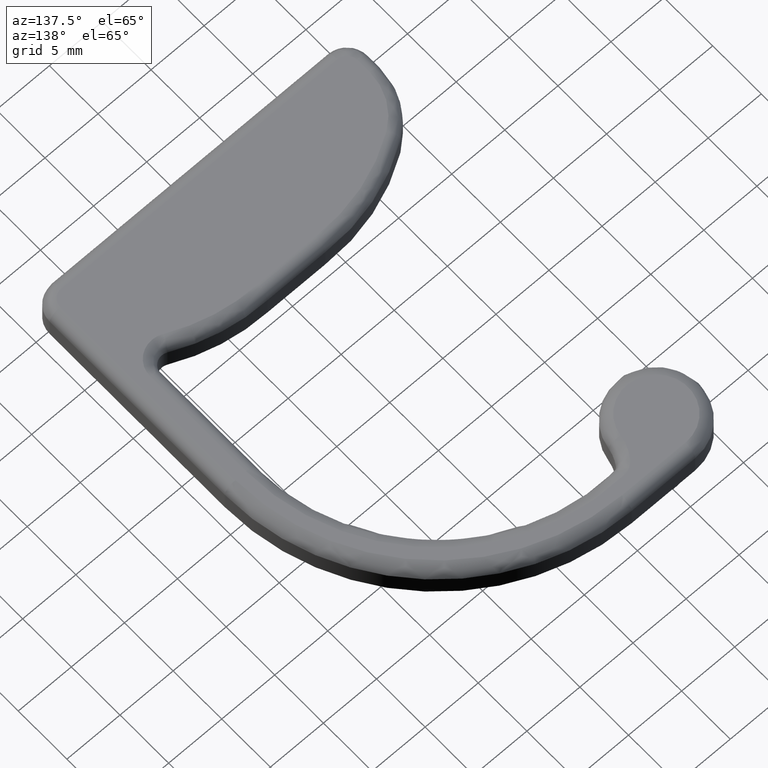
[diagram: clean part render]
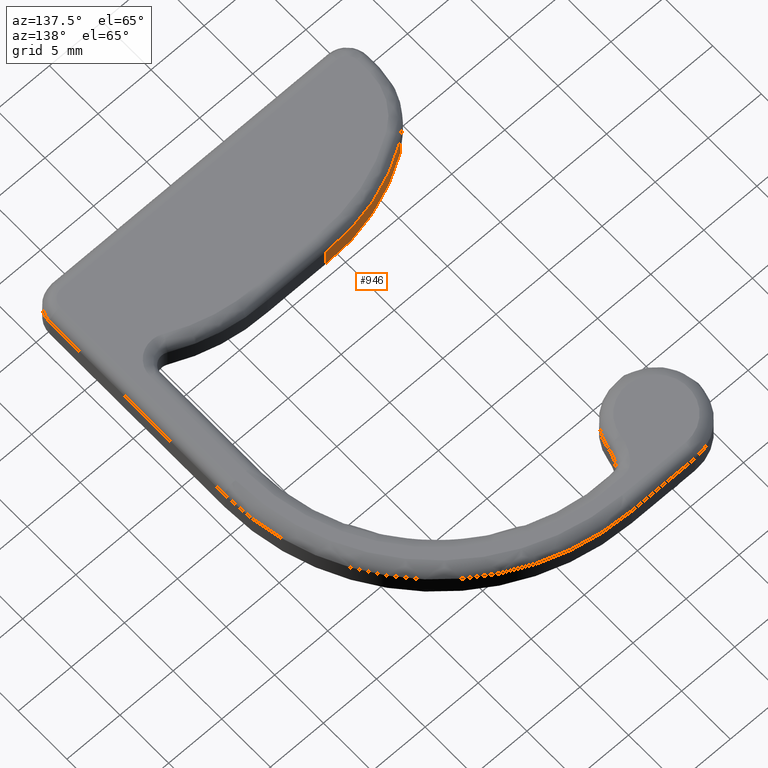
[diagram: same view with one face highlighted and labeled with its STEP entity id]
A machine part, auxiliary view. The second image highlights one B-rep face of the part: STEP entity #946.
In plain terms, the highlighted cylindrical surface (partial cylindrical patch) has radius 16.4097 mm, axis along (0, 0, 1).
Its self-contained STEP definition (entity closure, byte-faithful):
#26=CARTESIAN_POINT('',(-1.348833711088588,3.710987867076256,0.0));
#27=VERTEX_POINT('',#26);
#35=CARTESIAN_POINT('',(8.283639813359571,6.497942703677609,0.0));
#36=VERTEX_POINT('',#35);
#37=CARTESIAN_POINT('',(7.810052252098785,-9.904910864145336,0.0));
#38=DIRECTION('',(0.0,0.0,1.0));
#39=DIRECTION('',(1.0,0.0,0.0));
#40=AXIS2_PLACEMENT_3D('',#37,#38,#39);
#41=CIRCLE('',#40,16.409688916783985);
#42=EDGE_CURVE('',#36,#27,#41,.T.);
#314=CARTESIAN_POINT('',(8.283639813359571,6.497942703677609,2.0));
#315=VERTEX_POINT('',#314);
#394=CARTESIAN_POINT('',(-1.348833711089782,3.710987867078075,2.0));
#395=VERTEX_POINT('',#394);
#396=CARTESIAN_POINT('',(7.810052252098785,-9.904910864145336,2.0));
#397=DIRECTION('',(0.0,0.0,1.0));
#398=DIRECTION('',(1.0,0.0,0.0));
#399=AXIS2_PLACEMENT_3D('',#396,#397,#398);
#400=CIRCLE('',#399,16.409688916783985);
#401=EDGE_CURVE('',#315,#395,#400,.T.);
#559=CARTESIAN_POINT('',(8.283639813359571,6.497942703677609,2.0));
#560=DIRECTION('',(0.0,0.0,-1.0));
#561=VECTOR('',#560,2.0);
#562=LINE('',#559,#561);
#563=EDGE_CURVE('',#315,#36,#562,.T.);
#926=CARTESIAN_POINT('',(-1.348833711088588,3.710987867076256,2.0));
#927=DIRECTION('',(0.0,0.0,-1.0));
#928=VECTOR('',#927,2.0);
#929=LINE('',#926,#928);
#930=EDGE_CURVE('',#395,#27,#929,.T.);
#935=CARTESIAN_POINT('',(7.810052252098785,-9.904910864145336,3.0));
#936=DIRECTION('',(0.0,0.0,1.0));
#937=DIRECTION('',(1.0,0.0,0.0));
#938=AXIS2_PLACEMENT_3D('',#935,#936,#937);
#939=CYLINDRICAL_SURFACE('',#938,16.409688916783985);
#940=ORIENTED_EDGE('',*,*,#42,.T.);
#941=ORIENTED_EDGE('',*,*,#930,.F.);
#942=ORIENTED_EDGE('',*,*,#401,.F.);
#943=ORIENTED_EDGE('',*,*,#563,.T.);
#944=EDGE_LOOP('',(#940,#941,#942,#943));
#945=FACE_OUTER_BOUND('',#944,.T.);
#946=ADVANCED_FACE('',(#945),#939,.T.);